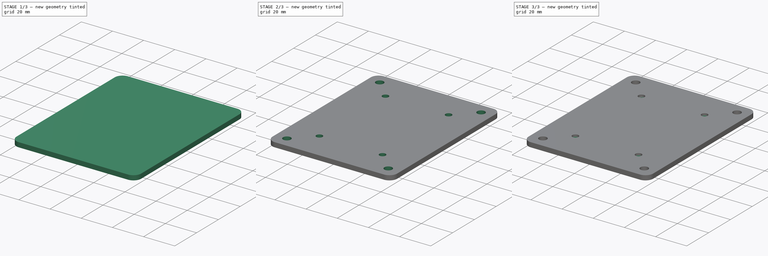
[diagram: build sequence overview — one tinted view per stage of 3, left to right]
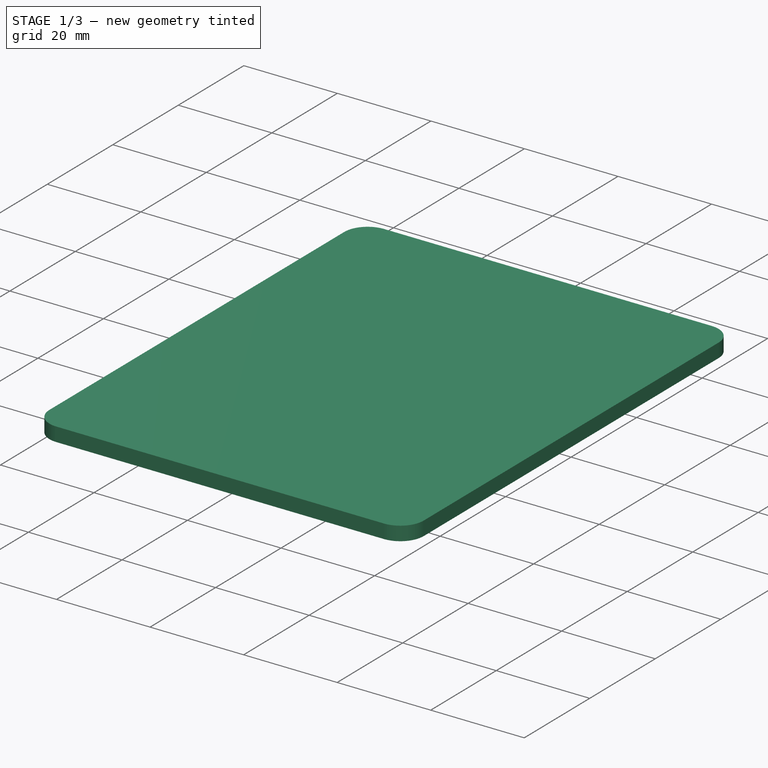
[diagram: stage 1 of 3 — iso view after this stage's code; geometry added in this stage tinted green]
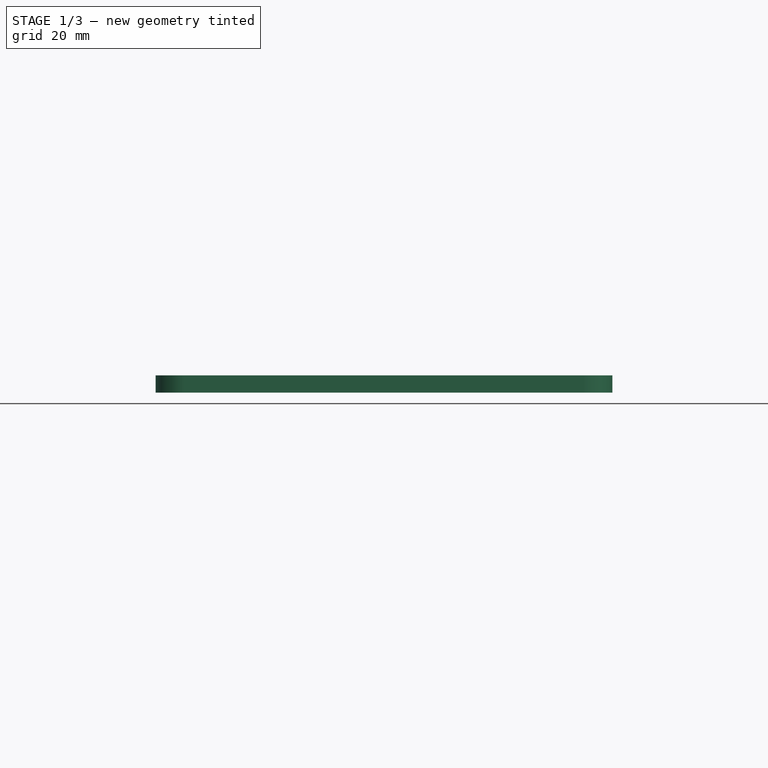
[diagram: stage 1 of 3 — front view after this stage's code; geometry added in this stage tinted green]
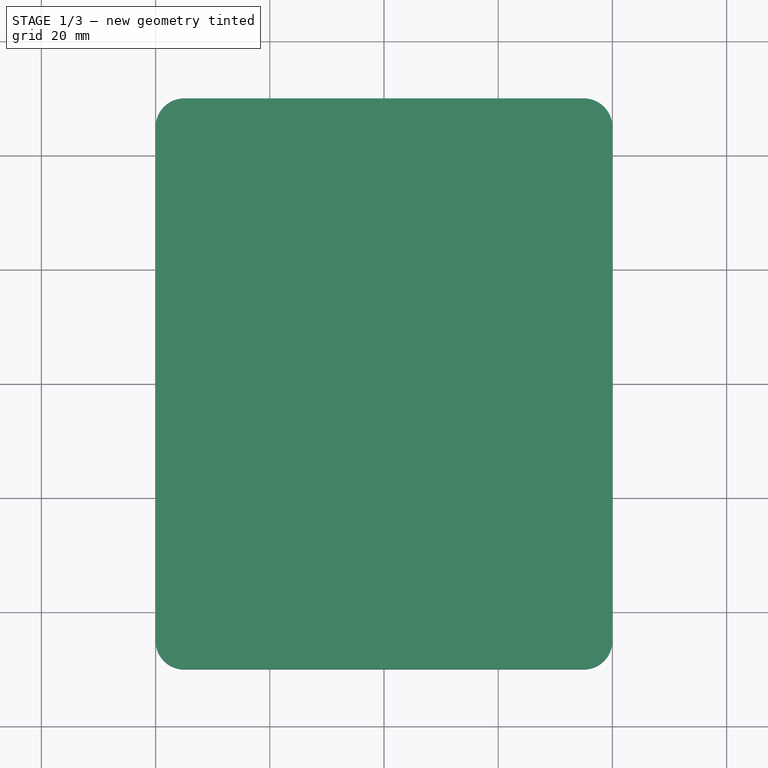
[diagram: stage 1 of 3 — top view after this stage's code; geometry added in this stage tinted green]
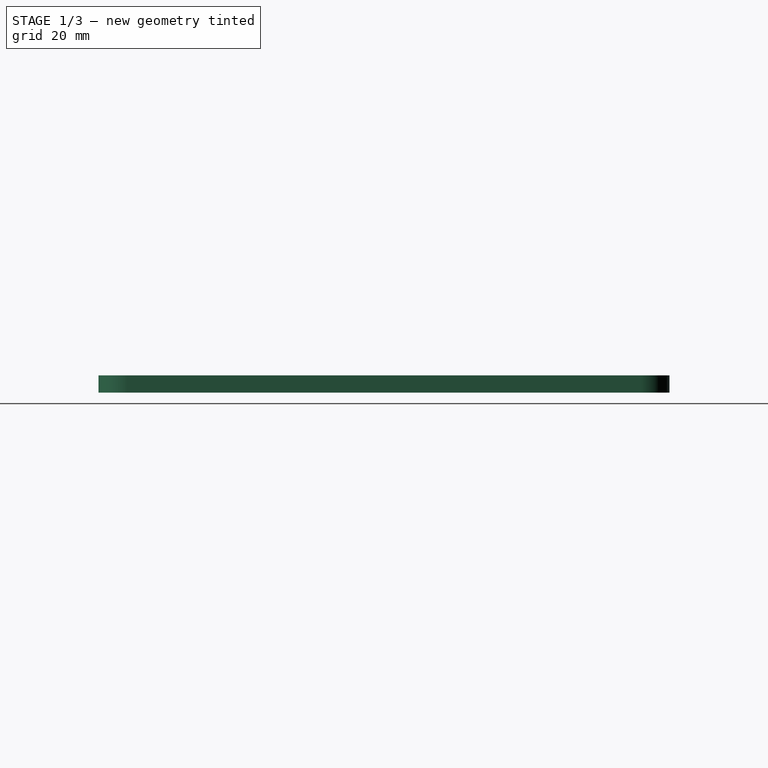
[diagram: stage 1 of 3 — right view after this stage's code; geometry added in this stage tinted green]
FCSTD DOCUMENT  (FreeCAD 0.20R29603 (Git))
Label: ttgo_esp32_poe_mounting_plate
License: All rights reserved
LicenseURL: http://en.wikipedia.org/wiki/All_rights_reserved
objects: PartDesign::CoordinateSystem×16, Sketcher::SketchObject×7, App::Link×7, App::Part×5, PartDesign::Pad×4, PartDesign::Body×4, App::DocumentObjectGroup×3, PartDesign::Pocket×3, PartDesign::Plane×2, App::FeaturePython×1
note: 43 computed .brp shape members not serialized (recipe doc carries the construction recipe); baked Part::Feature solids carry a one-line shape summary decoded from their .brp

FEATURE [PartDesign::Plane] DatumPlane001
  AttachmentOffset = pos=(0,0,3) rot=(0,0,1;0rad)
  Length = 97.8885
  MapMode = 5
  Placement = pos=(0,0,3) rot=(0,0,1;0rad)
  ResizeMode = 0
  Support = -> [XY_Plane002]
  Width = 117.889
FEATURE [PartDesign::Pad] Pad001
  Direction = (0,0,1)
  Length = 10
  Length2 = 10
  Profile = -> Sketch
  ReferenceAxis = -> Sketch [N_Axis]
  Type = 3
  UpToFace = -> DatumPlane001 [Plane]
FEATURE [PartDesign::CoordinateSystem] Local_CS002  label="TTGO Board Mounting Spacer Body Upper"
  AttacherType = Attacher::AttachEngine3D
  MapMode = 45
  Placement = pos=(7.1e-15,1e-16,3) rot=(0,0,1;0rad)
  Support = -> [Pad002]
FEATURE [PartDesign::CoordinateSystem] Local_CS003  label="TTGO Board Mounting Spacer Body Lower"
  AttacherType = Attacher::AttachEngine3D
  MapMode = 45
  Placement = pos=(7.1e-15,1e-16,0) rot=(0,0,1;0rad)
  Support = -> [Pad002]
FEATURE [PartDesign::Body] Body_3
  Group = -> [Sketch005,Pad002,Local_CS002,Local_CS003]
  Origin = -> Origin006
  Tip = -> Pad002
FEATURE [PartDesign::CoordinateSystem] LCS_4  label="TTGO Board Mounting Spacer Upper"
  AttacherType = Attacher::AttachEngine3D
  MapMode = 5
  Placement = pos=(7.1e-15,1e-16,3) rot=(0,0,1;0rad)
  Support = -> [Local_CS002]
FEATURE [PartDesign::CoordinateSystem] TTGO_Board_Mounting_Spacer_Lower  label="TTGO Board Mounting Spacer Lower"
  AttacherType = Attacher::AttachEngine3D
  MapMode = 5
  Placement = pos=(7.1e-15,1e-16,0) rot=(0,0,1;0rad)
  Support = -> [Local_CS003]
FEATURE [App::Part] TTGO_Board_Mounting_Spacer  label="TTGO Board Mounting Spacer"
  Group = -> [Body_3,LCS_4,TTGO_Board_Mounting_Spacer_Lower]
  Origin = -> Origin005
FEATURE [App::Link] TTGO_Board_Mounting_Spacer_Ass_1  label="TTGO Board Mounting Spacer Ass 1"
  AttachedBy = #TTGO_Board_Mounting_Spacer_Lower
  AttachedTo = Mounting_Panel#LCS_3
  LinkPlacement = pos=(-20.25,-30.25,3) rot=(0,0,-1;1e-05rad)
  LinkedObject = -> TTGO_Board_Mounting_Spacer
  Placement = pos=(-20.25,-30.25,3) rot=(0,0,-1;1e-05rad)
  SolverId = Asm4EE
  expr: Placement = Mounting_Panel.Placement * LCS_3.Placement * AttachmentOffset * TTGO_Board_Mounting_Spacer_Lower.Placement ^ -1
FEATURE [App::Link] TTGO_Board_Mounting_Spacer_Ass_2  label="TTGO Board Mounting Spacer Ass 2"
  AttachedBy = #TTGO_Board_Mounting_Spacer_Lower
  AttachedTo = TTGO_Board_Mounting_Spacer_Ass_1#LCS_4
  LinkPlacement = pos=(-20.25,-30.25,6) rot=(0,0,-1;1e-05rad)
  LinkedObject = -> TTGO_Board_Mounting_Spacer
  Placement = pos=(-20.25,-30.25,6) rot=(0,0,-1;1e-05rad)
  SolverId = Asm4EE
  expr: Placement = TTGO_Board_Mounting_Spacer_Ass_1.Placement * LCS_4.Placement * AttachmentOffset * TTGO_Board_Mounting_Spacer_Lower.Placement ^ -1
FEATURE [App::Link] TTGO_Board_Mounting_Spacer_Ass_3  label="TTGO Board Mounting Spacer Ass 3"
  AttachedBy = #TTGO_Board_Mounting_Spacer_Lower
  AttachedTo = TTGO_Board_Mounting_Spacer_Ass_2#LCS_4
  LinkPlacement = pos=(-20.25,-30.25,9) rot=(0,0,-1;1e-05rad)
  LinkedObject = -> TTGO_Board_Mounting_Spacer
  Placement = pos=(-20.25,-30.25,9) rot=(0,0,-1;1e-05rad)
  SolverId = Asm4EE
  expr: Placement = TTGO_Board_Mounting_Spacer_Ass_2.Placement * LCS_4.Placement * AttachmentOffset * TTGO_Board_Mounting_Spacer_Lower.Placement ^ -1
FEATURE [App::Link] TTGO_Board_Ass  label="TTGO Board Ass"
  AttachedBy = #LCS_2
  AttachedTo = TTGO_Board_Mounting_Spacer_Ass_3#LCS_4
  LinkPlacement = pos=(0.000679906,-0.000455155,12) rot=(0,0,-1;2.2e-05rad)
  LinkedObject = -> TTGO_Board
  Placement = pos=(0.000679906,-0.000455155,12) rot=(0,0,-1;2.2e-05rad)
  SolverId = Asm4EE
  expr: Placement = TTGO_Board_Mounting_Spacer_Ass_3.Placement * LCS_4.Placement * AttachmentOffset * LCS_2.Placement ^ -1
FEATURE [PartDesign::CoordinateSystem] Local_CS004  label="Mounting Panel Body Lower Left Mounting Hole"
  AttacherType = Attacher::AttachEngine3D
  MapMode = 45
  Placement = pos=(-32.5,-42.5,0) rot=(0,0,-1;1.1e-05rad)
  Support = -> [Pocket002]
FEATURE [PartDesign::Body] Body
  Group = -> [Sketch,DatumPlane001,Pad001,Sketch003,Pocket001,Local_CS001,Sketch004,Pocket002,Local_CS004]
  Origin = -> Origin002
  Tip = -> Pocket002
FEATURE [PartDesign::CoordinateSystem] Mounting_Panel_Lower_Left_Mounting_Hole  label="Mounting Panel Lower Left Mounting Hole"
  AttacherType = Attacher::AttachEngine3D
  MapMode = 5
  Placement = pos=(-32.5,-42.5,0) rot=(0,0,-1;1.1e-05rad)
  Support = -> [Local_CS004]
FEATURE [App::Part] MountingPanel  label="Mounting Panel"
  Group = -> [Body,LCS_1,LCS_3,Mounting_Panel_Lower_Left_Mounting_Hole]
  Origin = -> Origin001
FEATURE [Sketcher::SketchObject] Sketch006
  FullyConstrained = true
  MapMode = 5
  Support = -> [XY_Plane008]
  sketch-geometry (2):
    g0: Circle CenterX=0 CenterY=0 CenterZ=0 NormalX=0 NormalY=0 NormalZ=1 AngleXU=0 Radius=2.5
    g1: Circle CenterX=0 CenterY=0 CenterZ=0 NormalX=0 NormalY=0 NormalZ=1 AngleXU=0 Radius=6
  constraints (4):
    c: Coincident(g0,g-1)
    c: Coincident(g1,g0)
    c: Diameter(g0) = 5
    c: Diameter(g1) = 12
FEATURE [PartDesign::Pad] Pad003
  Direction = (0,0,1)
  Length = 3
  Length2 = 10
  Profile = -> Sketch006
  ReferenceAxis = -> Sketch006 [N_Axis]
  Type = 0
FEATURE [PartDesign::CoordinateSystem] Local_CS005  label="Mounting Panel Mounting Spacer Body Upper"
  AttacherType = Attacher::AttachEngine3D
  MapMode = 45
  Placement = pos=(1.19e-14,1e-16,3) rot=(0,0,1;0rad)
  Support = -> [Pad003]
FEATURE [PartDesign::CoordinateSystem] Local_CS006  label="Mounting Panel Mounting Spacer Body Lower"
  AttacherType = Attacher::AttachEngine3D
  MapMode = 45
  Placement = pos=(1.19e-14,1e-16,0) rot=(0,0,1;0rad)
  Support = -> [Pad003]
FEATURE [PartDesign::Body] Body_4
  Group = -> [Sketch006,Pad003,Local_CS005,Local_CS006]
  Origin = -> Origin008
  Tip = -> Pad003
FEATURE [PartDesign::CoordinateSystem] Mounting_Panel_Mounting_Spacer_Upper  label="Mounting Panel Mounting Spacer Upper"
  AttacherType = Attacher::AttachEngine3D
  MapMode = 5
  Placement = pos=(1.19e-14,1e-16,3) rot=(0,0,1;0rad)
  Support = -> [Local_CS005]
FEATURE [PartDesign::CoordinateSystem] Mounting_Panel_Mounting_Spacer_Lower  label="Mounting Panel Mounting Spacer Lower"
  AttacherType = Attacher::AttachEngine3D
  MapMode = 5
  Placement = pos=(1.19e-14,1e-16,0) rot=(0,0,1;0rad)
  Support = -> [Local_CS006]
FEATURE [App::Part] Mounting_Panel_Mounting_Spacer  label="Mounting Panel Mounting Spacer"
  Group = -> [Body_4,Mounting_Panel_Mounting_Spacer_Upper,Mounting_Panel_Mounting_Spacer_Lower]
  Origin = -> Origin007
FEATURE [App::DocumentObjectGroup] Parts
  Group = -> [MountingPanel,TTGO_Board,TTGO_Board_Mounting_Spacer,Mounting_Panel_Mounting_Spacer]
FEATURE [App::Link] Mounting_Panel_Mounting_Spacer_Ass_1  label="Mounting Panel Mounting Spacer Ass 1"
  AttachedBy = #Mounting_Panel_Mounting_Spacer_Upper
  AttachedTo = Mounting_Panel#Mounting_Panel_Lower_Left_Mounting_Hole
  LinkPlacement = pos=(-32.5,-42.5,-3) rot=(0,0,-1;1.1e-05rad)
  LinkedObject = -> Mounting_Panel_Mounting_Spacer
  Placement = pos=(-32.5,-42.5,-3) rot=(0,0,-1;1.1e-05rad)
  SolverId = Asm4EE
  expr: Placement = Mounting_Panel.Placement * Mounting_Panel_Lower_Left_Mounting_Hole.Placement * AttachmentOffset * Mounting_Panel_Mounting_Spacer_Upper.Placement ^ -1
FEATURE [App::Link] Mounting_Panel_Mounting_Spacer_Ass_2  label="Mounting Panel Mounting Spacer Ass 2"
  AttachedBy = #Mounting_Panel_Mounting_Spacer_Upper
  AttachedTo = Mounting_Panel_Mounting_Spacer_Ass_1#Mounting_Panel_Mounting_Spacer_Lower
  LinkPlacement = pos=(-32.5,-42.5,-6) rot=(0,0,-1;1.1e-05rad)
  LinkedObject = -> Mounting_Panel_Mounting_Spacer
  Placement = pos=(-32.5,-42.5,-6) rot=(0,0,-1;1.1e-05rad)
  SolverId = Asm4EE
  expr: Placement = Mounting_Panel_Mounting_Spacer_Ass_1.Placement * Mounting_Panel_Mounting_Spacer_Lower.Placement * AttachmentOffset * Mounting_Panel_Mounting_Spacer_Upper.Placement ^ -1
FEATURE [App::Part] Assembly
  AssemblyType = Part::Link
  Group = -> [LCS_Origin,Constraints,Variables,Configurations,Mounting_Panel,TTGO_Board_Mounting_Spacer_Ass_1,TTGO_Board_Mounting_Spacer_Ass_2,TTGO_Board_Mounting_Spacer_Ass_3,TTGO_Board_Ass,Mounting_Panel_Mounting_Spacer_Ass_1,Mounting_Panel_Mounting_Spacer_Ass_2]
  Origin = -> Origin
  Type = Assembly
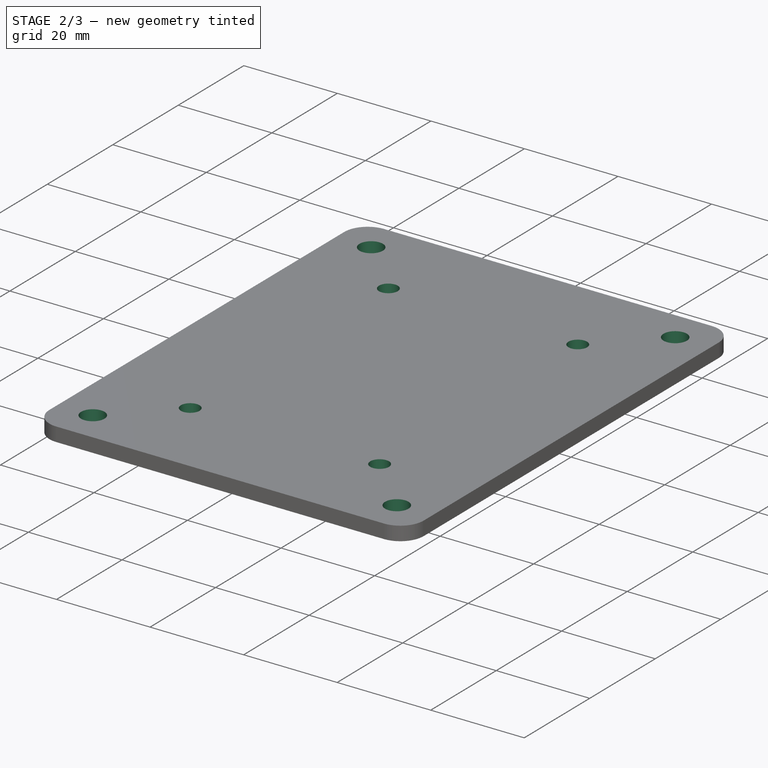
[diagram: stage 2 of 3 — iso view after this stage's code; geometry added in this stage tinted green]
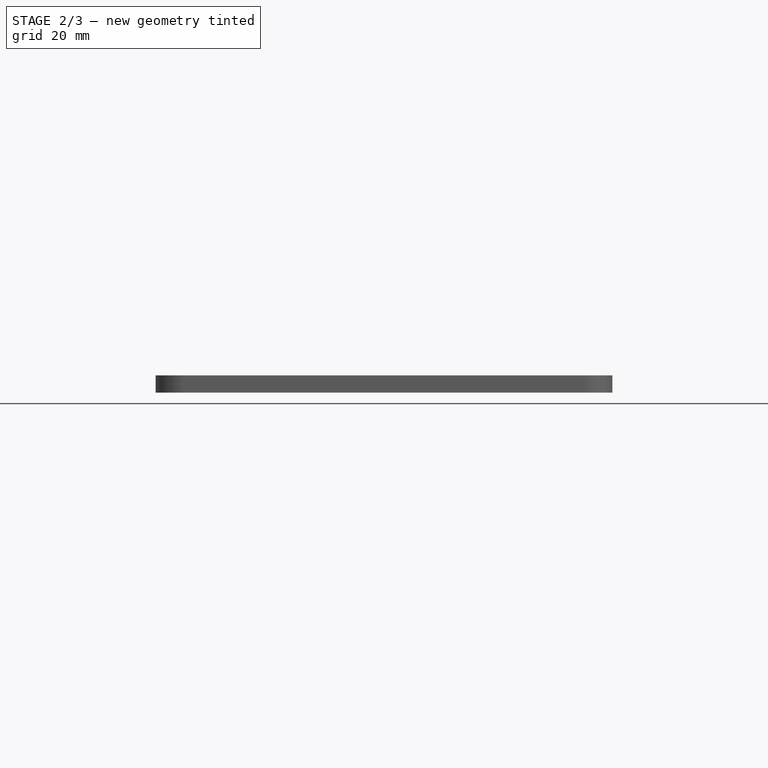
[diagram: stage 2 of 3 — front view after this stage's code; geometry added in this stage tinted green]
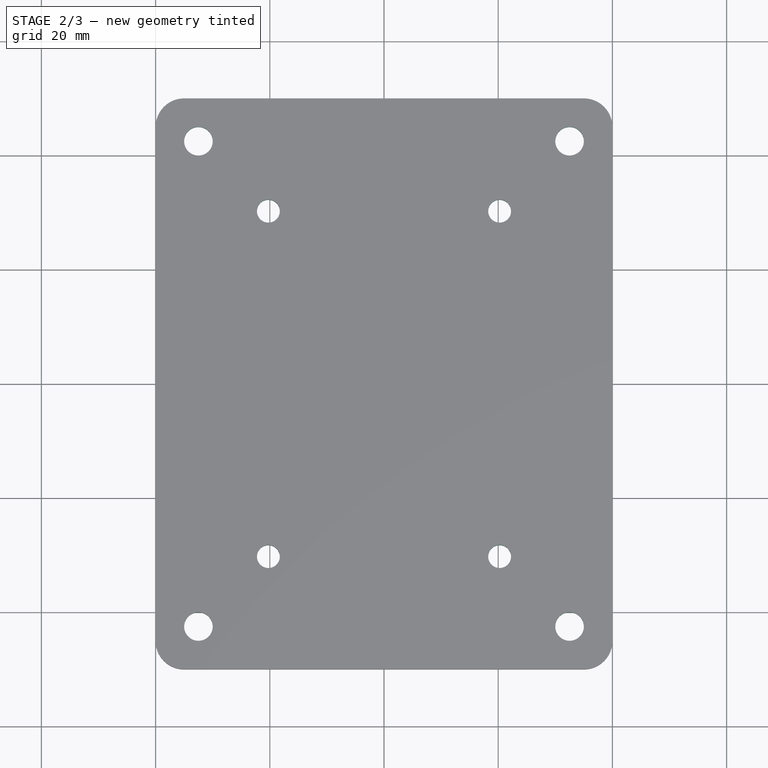
[diagram: stage 2 of 3 — top view after this stage's code; geometry added in this stage tinted green]
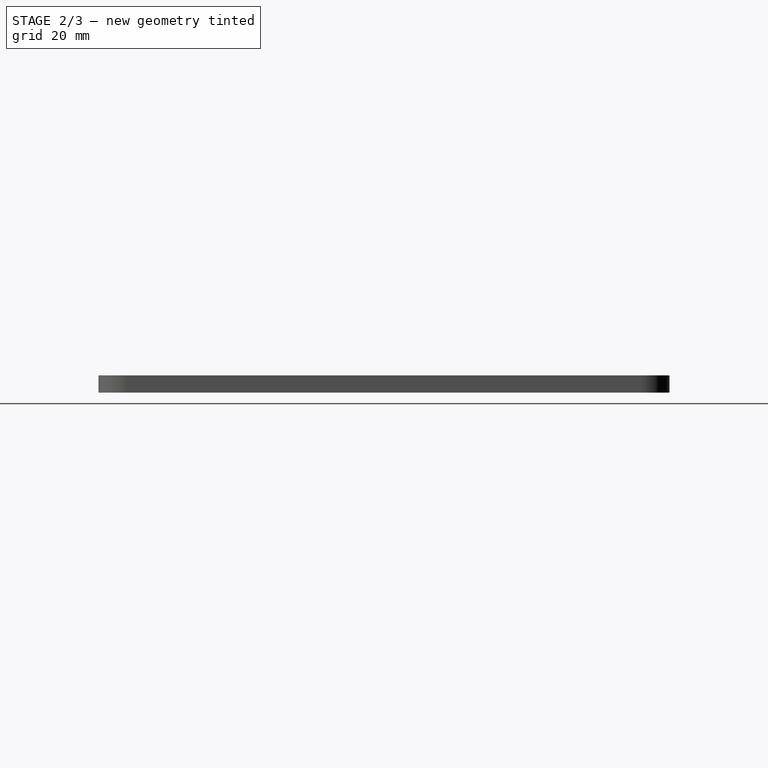
[diagram: stage 2 of 3 — right view after this stage's code; geometry added in this stage tinted green]
FEATURE [Sketcher::SketchObject] Sketch003
  FullyConstrained = true
  MapMode = 5
  Placement = pos=(0,0,3) rot=(0,0,1;0rad)
  Support = -> [DatumPlane001]
  sketch-geometry (8):
    g0: LineSegment StartX=-20.25 StartY=30.25 StartZ=0 EndX=20.25 EndY=30.25 EndZ=0
    g1: LineSegment StartX=20.25 StartY=30.25 StartZ=0 EndX=20.25 EndY=-30.25 EndZ=0
    g2: LineSegment StartX=20.25 StartY=-30.25 StartZ=0 EndX=-20.25 EndY=-30.25 EndZ=0
    g3: LineSegment StartX=-20.25 StartY=-30.25 StartZ=0 EndX=-20.25 EndY=30.25 EndZ=0
    g4: Circle CenterX=-20.25 CenterY=30.25 CenterZ=0 NormalX=0 NormalY=0 NormalZ=1 AngleXU=0 Radius=2
    g5: Circle CenterX=20.25 CenterY=30.25 CenterZ=0 NormalX=0 NormalY=0 NormalZ=1 AngleXU=0 Radius=2
    g6: Circle CenterX=-20.25 CenterY=-30.25 CenterZ=0 NormalX=0 NormalY=0 NormalZ=1 AngleXU=0 Radius=2
    g7: Circle CenterX=20.25 CenterY=-30.25 CenterZ=0 NormalX=0 NormalY=0 NormalZ=1 AngleXU=0 Radius=2
  constraints (18):
    c: Coincident(g0,g1)
    c: Coincident(g1,g2)
    c: Coincident(g2,g3)
    c: Coincident(g3,g0)
    c: Horizontal(g2)
    c: Vertical(g3)
    c: Coincident(g4,g0)
    c: Coincident(g5,g0)
    c: Coincident(g6,g2)
    c: Coincident(g7,g1)
    c: Equal(g4,g5)
    c: Equal(g5,g6)
    c: Equal(g6,g7)
    c: Diameter(g6) = 4
    c: Symmetric(g4,g5,g-2)
    c: Symmetric(g5,g7,g-1)
    c: DistanceX(g0,g0) = 40.5
    c: DistanceY(g1,g1) = 60.5
FEATURE [PartDesign::Pocket] Pocket001
  BaseFeature = -> Pad001
  Direction = (0,0,-1)
  Length = 0
  Length2 = 5
  Profile = -> Sketch003
  ReferenceAxis = -> Sketch003 [N_Axis]
  Type = 3
  UpToFace = -> XY_Plane002
FEATURE [PartDesign::CoordinateSystem] LCS_1
  AttacherType = Attacher::AttachEngine3D
FEATURE [PartDesign::CoordinateSystem] Local_CS  label="TTGO Board Body Lower Left Mounting Hole"
  AttacherType = Attacher::AttachEngine3D
  MapMode = 45
  Placement = pos=(-20.25,-30.25,0) rot=(0,0,1;1.2e-05rad)
  Support = -> [Pocket]
FEATURE [PartDesign::Body] Body_2
  Group = -> [DatumPlane,Sketch001,Pad,Sketch002,Pocket,Local_CS]
  Origin = -> Origin004
  Tip = -> Pocket
FEATURE [PartDesign::CoordinateSystem] LCS_2  label="TTGO Board Lower Left Mounting Hole"
  AttacherType = Attacher::AttachEngine3D
  MapMode = 5
  Placement = pos=(-20.25,-30.25,0) rot=(0,0,1;1.2e-05rad)
  Support = -> [Local_CS]
FEATURE [App::Part] TTGO_Board  label="TTGO Board"
  Group = -> [Body_2,LCS_2]
  Origin = -> Origin003
FEATURE [PartDesign::CoordinateSystem] Local_CS001  label="Mounting Panel Body Lower Left TTGO Board Mounting Hole"
  AttacherType = Attacher::AttachEngine3D
  MapMode = 45
  Placement = pos=(-20.25,-30.25,3) rot=(0,0,-1;1e-05rad)
  Support = -> [Pocket001]
FEATURE [PartDesign::CoordinateSystem] LCS_3  label="Mounting Panel Lower Left TTGO Board Mounting Hole"
  AttacherType = Attacher::AttachEngine3D
  MapMode = 5
  Placement = pos=(-20.25,-30.25,3) rot=(0,0,-1;1e-05rad)
  Support = -> [Local_CS001]
FEATURE [App::Link] Mounting_Panel  label="Mounting Panel Ass"
  AttachedBy = #LCS_1
  AttachedTo = Parent Assembly#LCS_Origin
  LinkedObject = -> MountingPanel
  SolverId = Asm4EE
  expr: Placement = LCS_Origin.Placement * AttachmentOffset * LCS_1.Placement ^ -1
FEATURE [Sketcher::SketchObject] Sketch004
  FullyConstrained = true
  MapMode = 5
  Placement = pos=(0,0,3) rot=(0,0,1;0rad)
  Support = -> [DatumPlane001]
  sketch-geometry (8):
    g0: LineSegment StartX=-32.5 StartY=42.5 StartZ=0 EndX=32.5 EndY=42.5 EndZ=0
    g1: LineSegment StartX=32.5 StartY=42.5 StartZ=0 EndX=32.5 EndY=-42.5 EndZ=0
    g2: LineSegment StartX=32.5 StartY=-42.5 StartZ=0 EndX=-32.5 EndY=-42.5 EndZ=0
    g3: LineSegment StartX=-32.5 StartY=-42.5 StartZ=0 EndX=-32.5 EndY=42.5 EndZ=0
    g4: Circle CenterX=-32.5 CenterY=42.5 CenterZ=0 NormalX=0 NormalY=0 NormalZ=1 AngleXU=0 Radius=2.5
    g5: Circle CenterX=32.5 CenterY=42.5 CenterZ=0 NormalX=0 NormalY=0 NormalZ=1 AngleXU=0 Radius=2.5
    g6: Circle CenterX=-32.5 CenterY=-42.5 CenterZ=0 NormalX=0 NormalY=0 NormalZ=1 AngleXU=0 Radius=2.5
    g7: Circle CenterX=32.5 CenterY=-42.5 CenterZ=0 NormalX=0 NormalY=0 NormalZ=1 AngleXU=0 Radius=2.5
  constraints (18):
    c: Coincident(g0,g1)
    c: Coincident(g1,g2)
    c: Coincident(g2,g3)
    c: Coincident(g3,g0)
    c: Horizontal(g2)
    c: Vertical(g3)
    c: Symmetric(g0,g0,g-2)
    c: Symmetric(g0,g1,g-1)
    c: Coincident(g4,g0)
    c: Coincident(g5,g0)
    c: Coincident(g6,g2)
    c: Coincident(g7,g1)
    c: Equal(g4,g5)
    c: Equal(g5,g6)
    c: Equal(g6,g7)
    c: Diameter(g6) = 5
    c: DistanceX(g0,g0) = 65
    c: DistanceY(g1,g1) = 85
FEATURE [PartDesign::Pocket] Pocket002
  BaseFeature = -> Pocket001
  Direction = (0,0,-1)
  Length = 0
  Length2 = 5
  Profile = -> Sketch004
  ReferenceAxis = -> Sketch004 [N_Axis]
  Type = 3
  UpToFace = -> XY_Plane002
FEATURE [Sketcher::SketchObject] Sketch005
  FullyConstrained = true
  MapMode = 5
  Support = -> [XY_Plane006]
  sketch-geometry (2):
    g0: Circle CenterX=0 CenterY=0 CenterZ=0 NormalX=0 NormalY=0 NormalZ=1 AngleXU=0 Radius=3
    g1: Circle CenterX=0 CenterY=0 CenterZ=0 NormalX=0 NormalY=0 NormalZ=1 AngleXU=0 Radius=1.5
  constraints (4):
    c: Coincident(g0,g-1)
    c: Coincident(g1,g0)
    c: Diameter(g0) = 6
    c: Diameter(g1) = 3
FEATURE [PartDesign::Pad] Pad002
  Direction = (0,0,1)
  Length = 3
  Length2 = 10
  Profile = -> Sketch005
  ReferenceAxis = -> Sketch005 [N_Axis]
  Type = 0
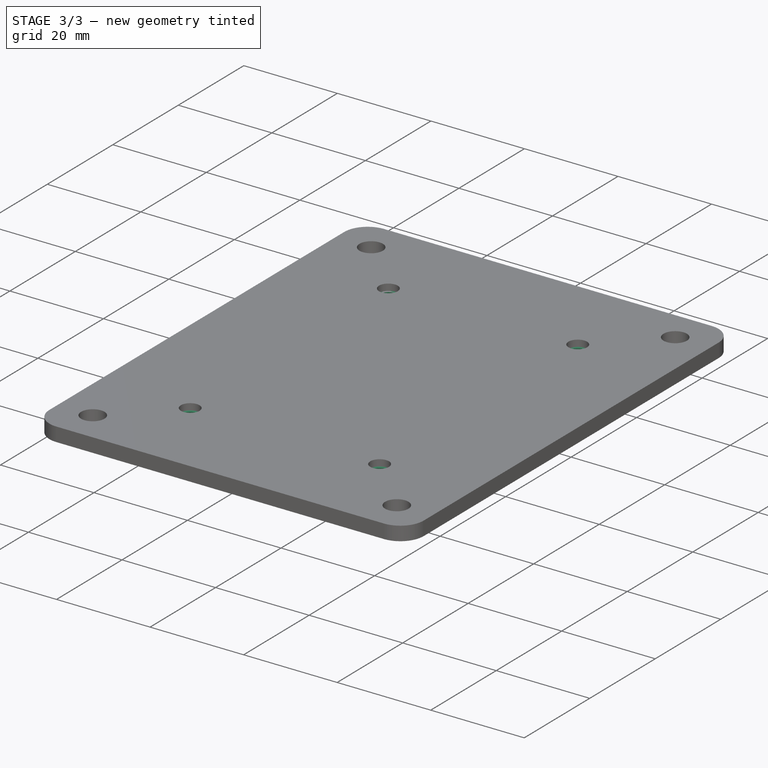
[diagram: stage 3 of 3 — iso view after this stage's code; geometry added in this stage tinted green]
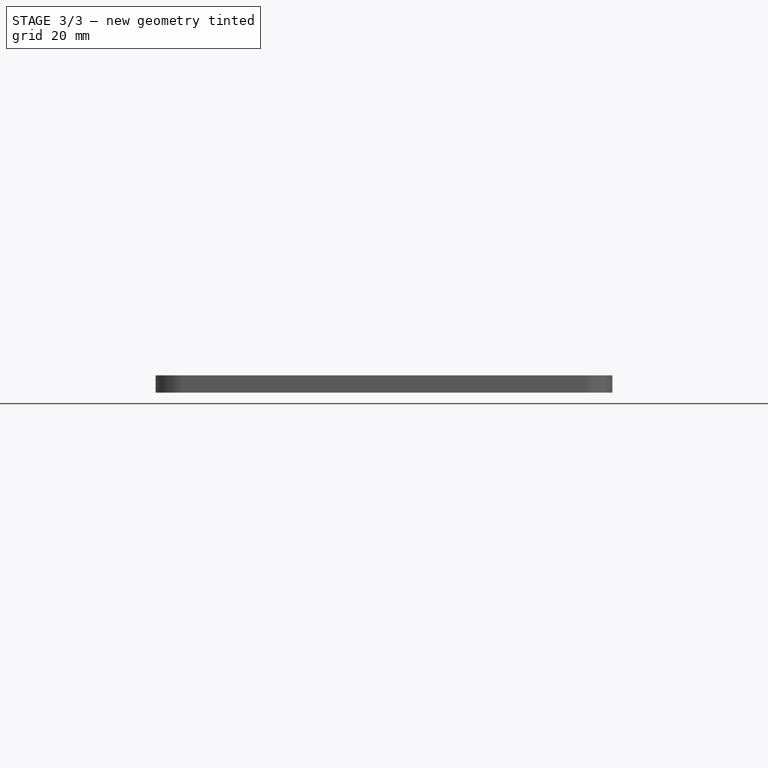
[diagram: stage 3 of 3 — front view after this stage's code; geometry added in this stage tinted green]
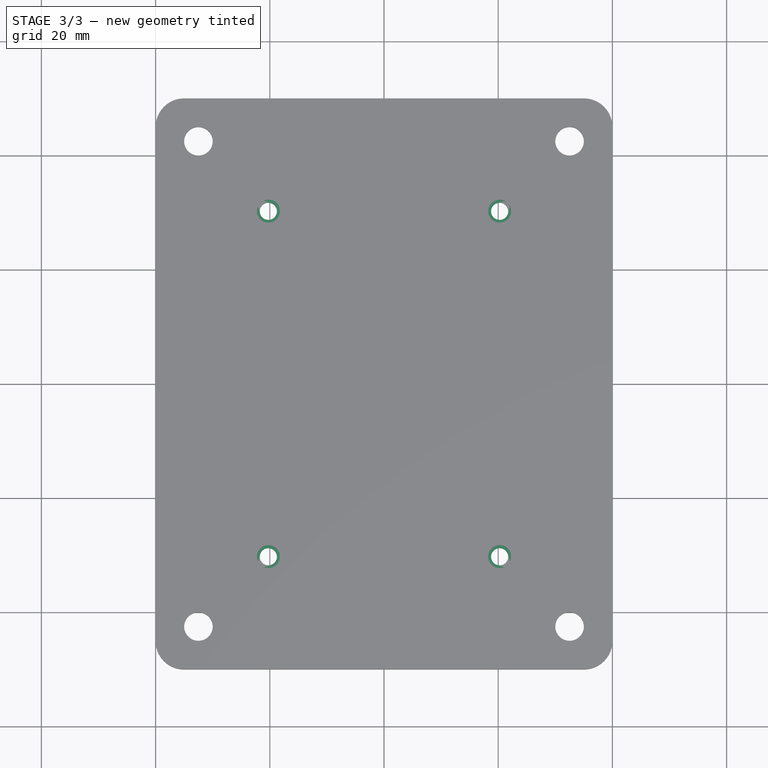
[diagram: stage 3 of 3 — top view after this stage's code; geometry added in this stage tinted green]
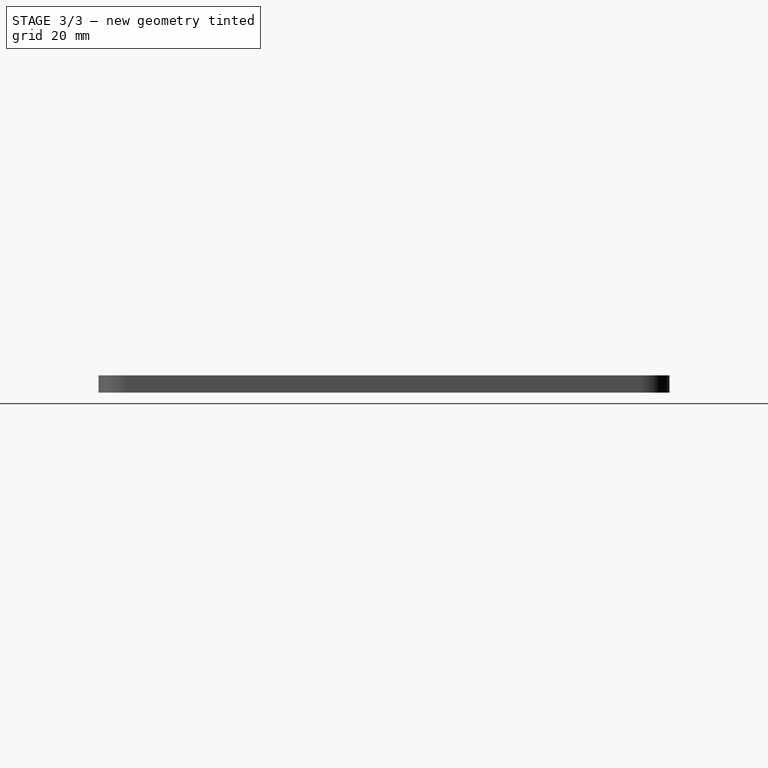
[diagram: stage 3 of 3 — right view after this stage's code; geometry added in this stage tinted green]
FEATURE [PartDesign::CoordinateSystem] LCS_Origin
  AttacherType = Attacher::AttachEngine3D
  MapMode = 2
  Support = -> [X_Axis]
FEATURE [App::DocumentObjectGroup] Constraints
FEATURE [App::FeaturePython] Variables  # WARN: FeaturePython — macro-defined, semantics opaque (R4)
  Type = App::PropertyContainer
FEATURE [App::DocumentObjectGroup] Configurations
FEATURE [Sketcher::SketchObject] Sketch
  FullyConstrained = true
  MapMode = 5
  Support = -> [XY_Plane002]
  sketch-geometry (12):
    g0: LineSegment StartX=-40 StartY=50 StartZ=0 EndX=40 EndY=50 EndZ=0
    g1: LineSegment StartX=40 StartY=50 StartZ=0 EndX=40 EndY=-50 EndZ=0
    g2: LineSegment StartX=40 StartY=-50 StartZ=0 EndX=-40 EndY=-50 EndZ=0
    g3: LineSegment StartX=-40 StartY=-50 StartZ=0 EndX=-40 EndY=50 EndZ=0
    g4: LineSegment StartX=-35 StartY=50 StartZ=0 EndX=35 EndY=50 EndZ=0
    g5: LineSegment StartX=40 StartY=45 StartZ=0 EndX=40 EndY=-45 EndZ=0
    g6: LineSegment StartX=35 StartY=-50 StartZ=0 EndX=-35 EndY=-50 EndZ=0
    g7: LineSegment StartX=-40 StartY=-45 StartZ=0 EndX=-40 EndY=45 EndZ=0
    g8: ArcOfCircle CenterX=-35 CenterY=45 CenterZ=0 NormalX=0 NormalY=0 NormalZ=1 AngleXU=0 Radius=5 StartAngle=1.5708 EndAngle=3.14159
    g9: ArcOfCircle CenterX=35 CenterY=45 CenterZ=0 NormalX=0 NormalY=0 NormalZ=1 AngleXU=0 Radius=5 StartAngle=0 EndAngle=1.5708
    g10: ArcOfCircle CenterX=35 CenterY=-45 CenterZ=0 NormalX=0 NormalY=0 NormalZ=1 AngleXU=0 Radius=5 StartAngle=4.71239 EndAngle=6.28319
    g11: ArcOfCircle CenterX=-35 CenterY=-45 CenterZ=0 NormalX=0 NormalY=0 NormalZ=1 AngleXU=0 Radius=5 StartAngle=3.14159 EndAngle=4.71239
  constraints (30):
    c: Coincident(g0,g1)
    c: Coincident(g1,g2)
    c: Coincident(g2,g3)
    c: Coincident(g3,g0)
    c: Horizontal(g2)
    c: Vertical(g3)
    c: Symmetric(g0,g0,g-2)
    c: Symmetric(g0,g1,g-1)
    c: DistanceX(g0,g0) = 80
    c: DistanceY(g1,g1) = 100
    c: Horizontal(g4)
    c: Horizontal(g6)
    c: Vertical(g5)
    c: Vertical(g7)
    c: Tangent(g4,g8) = 1.5708
    c: Tangent(g7,g8) = 1.5708
    c: Tangent(g4,g9) = 1.5708
    c: Tangent(g5,g9) = 1.5708
    c: Tangent(g5,g10) = 1.5708
    c: Tangent(g6,g10) = 1.5708
    c: Tangent(g7,g11) = 1.5708
    c: Tangent(g6,g11) = 1.5708
    c: PointOnObject(g4,g0)
    c: PointOnObject(g7,g3)
    c: PointOnObject(g5,g1)
    c: PointOnObject(g6,g2)
    c: Equal(g8,g9)
    c: Equal(g9,g11)
    c: Equal(g11,g10)
    c: Radius(g11) = 5
FEATURE [Sketcher::SketchObject] Sketch001
  FullyConstrained = true
  MapMode = 5
  Support = -> [XY_Plane004]
  sketch-geometry (4):
    g0: LineSegment StartX=-22.5 StartY=32.5 StartZ=0 EndX=22.5 EndY=32.5 EndZ=0
    g1: LineSegment StartX=22.5 StartY=32.5 StartZ=0 EndX=22.5 EndY=-32.5 EndZ=0
    g2: LineSegment StartX=22.5 StartY=-32.5 StartZ=0 EndX=-22.5 EndY=-32.5 EndZ=0
    g3: LineSegment StartX=-22.5 StartY=-32.5 StartZ=0 EndX=-22.5 EndY=32.5 EndZ=0
  constraints (10):
    c: Coincident(g0,g1)
    c: Coincident(g1,g2)
    c: Coincident(g2,g3)
    c: Coincident(g3,g0)
    c: Horizontal(g2)
    c: Vertical(g3)
    c: DistanceX(g0,g0) = 45
    c: DistanceY(g1,g1) = 65
    c: Symmetric(g0,g0,g-2)
    c: Symmetric(g0,g1,g-1)
FEATURE [PartDesign::Plane] DatumPlane
  AttachmentOffset = pos=(0,0,1.6) rot=(0,0,1;0rad)
  Length = 61.4018
  MapMode = 5
  Placement = pos=(0,0,1.6) rot=(0,0,1;0rad)
  ResizeMode = 0
  Support = -> [XY_Plane004]
  Width = 76.4018
FEATURE [PartDesign::Pad] Pad
  Direction = (0,0,1)
  Length = 1.6
  Length2 = 10
  Profile = -> Sketch001
  ReferenceAxis = -> Sketch001 [N_Axis]
  Type = 3
  UpToFace = -> DatumPlane [Plane]
FEATURE [Sketcher::SketchObject] Sketch002
  FullyConstrained = true
  MapMode = 5
  Placement = pos=(0,0,1.6) rot=(0,0,1;0rad)
  Support = -> [DatumPlane]
  sketch-geometry (8):
    g0: LineSegment StartX=-20.25 StartY=30.25 StartZ=0 EndX=20.25 EndY=30.25 EndZ=0
    g1: LineSegment StartX=20.25 StartY=30.25 StartZ=0 EndX=20.25 EndY=-30.25 EndZ=0
    g2: LineSegment StartX=20.25 StartY=-30.25 StartZ=0 EndX=-20.25 EndY=-30.25 EndZ=0
    g3: LineSegment StartX=-20.25 StartY=-30.25 StartZ=0 EndX=-20.25 EndY=30.25 EndZ=0
    g4: Circle CenterX=-20.25 CenterY=30.25 CenterZ=0 NormalX=0 NormalY=0 NormalZ=1 AngleXU=0 Radius=1.5
    g5: Circle CenterX=20.25 CenterY=30.25 CenterZ=0 NormalX=0 NormalY=0 NormalZ=1 AngleXU=0 Radius=1.5
    g6: Circle CenterX=20.25 CenterY=-30.25 CenterZ=0 NormalX=0 NormalY=0 NormalZ=1 AngleXU=0 Radius=1.5
    g7: Circle CenterX=-20.25 CenterY=-30.25 CenterZ=0 NormalX=0 NormalY=0 NormalZ=1 AngleXU=0 Radius=1.5
  constraints (18):
    c: Coincident(g0,g1)
    c: Coincident(g1,g2)
    c: Coincident(g2,g3)
    c: Coincident(g3,g0)
    c: Horizontal(g2)
    c: Vertical(g3)
    c: Symmetric(g0,g0,g-2)
    c: Symmetric(g0,g1,g-1)
    c: DistanceX(g0,g0) = 40.5
    c: DistanceY(g1,g1) = 60.5
    c: Coincident(g4,g0)
    c: Coincident(g5,g0)
    c: Coincident(g6,g1)
    c: Coincident(g7,g2)
    c: Equal(g4,g5)
    c: Equal(g5,g6)
    c: Equal(g6,g7)
    c: Diameter(g7) = 3
FEATURE [PartDesign::Pocket] Pocket
  BaseFeature = -> Pad
  Direction = (0,0,-1)
  Length = 0
  Length2 = 5
  Profile = -> Sketch002
  ReferenceAxis = -> Sketch002 [N_Axis]
  Type = 3
  UpToFace = -> XY_Plane004
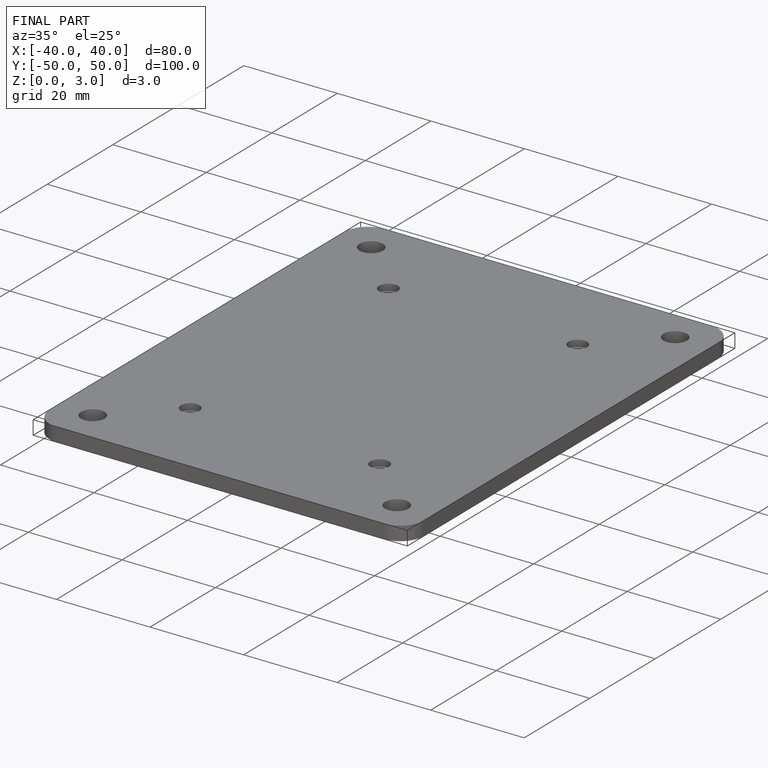
[diagram: finished part — iso view with bounding-box wireframe]
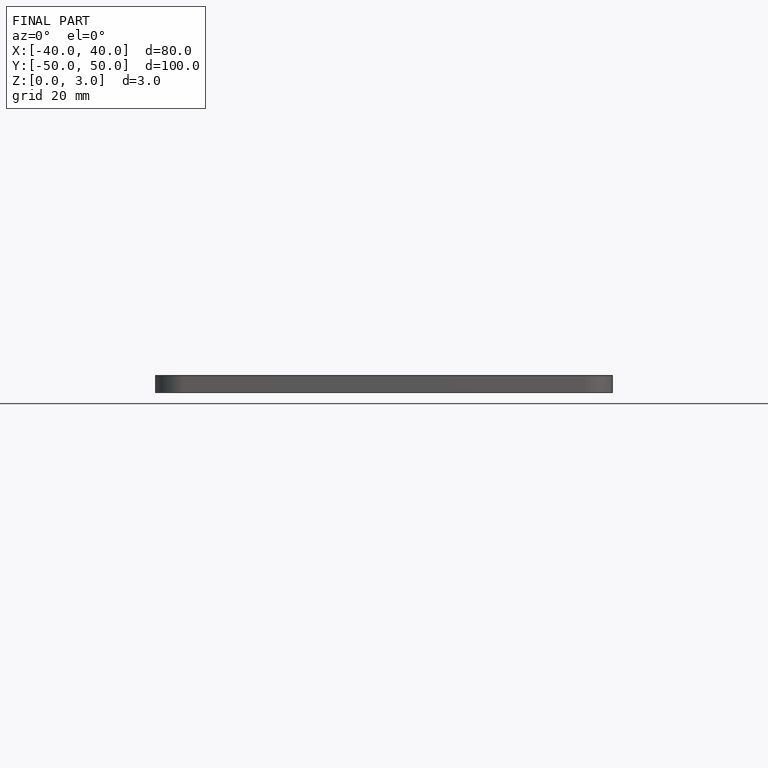
[diagram: finished part — front view with bounding-box wireframe]
